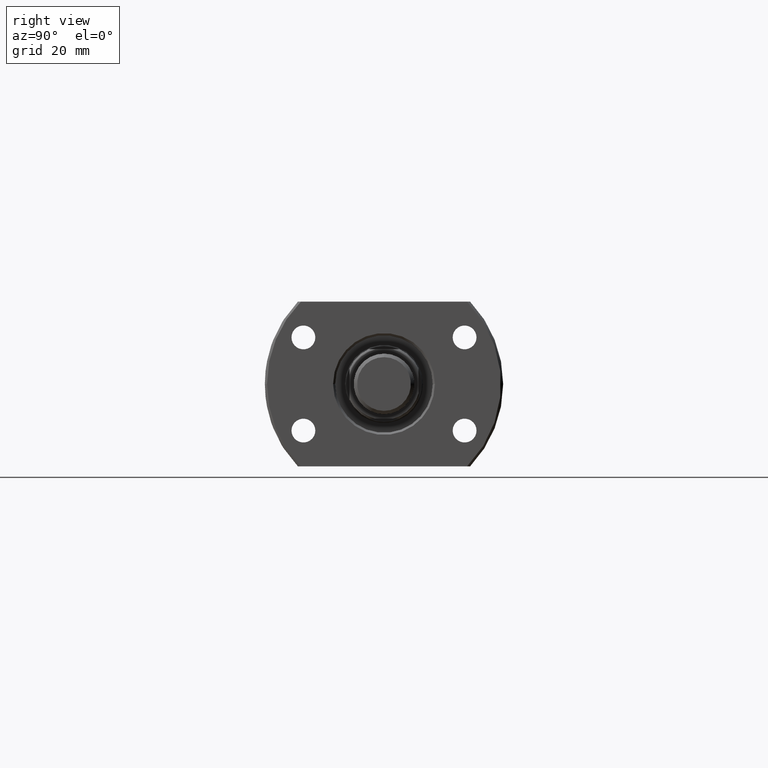
[diagram: clean part render]
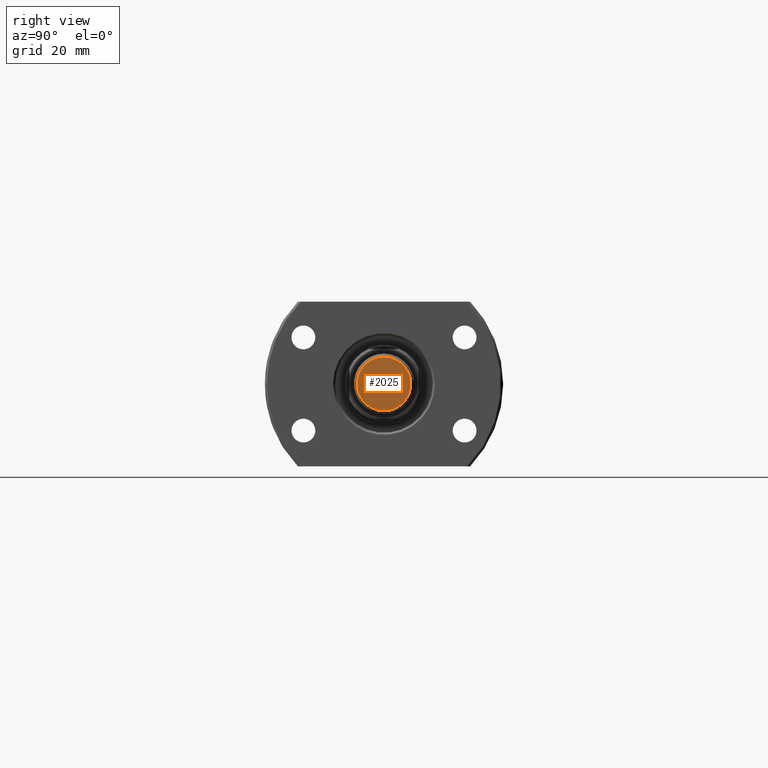
[diagram: same view with one face highlighted and labeled with its STEP entity id]
A machine part, right view. The second image highlights one B-rep face of the part: STEP entity #2025.
In plain terms, the highlighted planar face has unit normal (-1, -0, 0).
Its self-contained STEP definition (entity closure, byte-faithful):
#96 = AXIS2_PLACEMENT_3D ( 'NONE', #3229, #606, #1790 ) ;
#266 = DIRECTION ( 'NONE',  ( 1.000000000000000000, 0.000000000000000000, -0.000000000000000000 ) ) ;
#272 = CIRCLE ( 'NONE', #96, 6.199999999999999289 ) ;
#298 = EDGE_LOOP ( 'NONE', ( #1206, #431 ) ) ;
#361 = CARTESIAN_POINT ( 'NONE',  ( 0.000000000000000000, 0.000000000000000000, 0.000000000000000000 ) ) ;
#401 = DIRECTION ( 'NONE',  ( 1.000000000000000000, 0.000000000000000000, 0.000000000000000000 ) ) ;
#431 = ORIENTED_EDGE ( 'NONE', *, *, #2667, .T. ) ;
#532 = FACE_OUTER_BOUND ( 'NONE', #298, .T. ) ;
#568 = AXIS2_PLACEMENT_3D ( 'NONE', #361, #1535, #401 ) ;
#606 = DIRECTION ( 'NONE',  ( -0.000000000000000000, -0.000000000000000000, -1.000000000000000000 ) ) ;
#786 = CARTESIAN_POINT ( 'NONE',  ( 0.000000000000000000, 0.000000000000000000, 0.000000000000000000 ) ) ;
#1206 = ORIENTED_EDGE ( 'NONE', *, *, #2394, .T. ) ;
#1258 = VERTEX_POINT ( 'NONE', #3469 ) ;
#1535 = DIRECTION ( 'NONE',  ( -0.000000000000000000, -0.000000000000000000, -1.000000000000000000 ) ) ;
#1790 = DIRECTION ( 'NONE',  ( 1.000000000000000000, 0.000000000000000000, 0.000000000000000000 ) ) ;
#1926 = DIRECTION ( 'NONE',  ( 0.000000000000000000, 0.000000000000000000, 1.000000000000000000 ) ) ;
#2025 = ADVANCED_FACE ( 'NONE', ( #532 ), #3388, .F. ) ;
#2394 = EDGE_CURVE ( 'NONE', #2678, #1258, #272, .T. ) ;
#2407 = CIRCLE ( 'NONE', #568, 6.199999999999999289 ) ;
#2635 = CARTESIAN_POINT ( 'NONE',  ( 6.199999999999999289, 0.000000000000000000, 0.000000000000000000 ) ) ;
#2667 = EDGE_CURVE ( 'NONE', #1258, #2678, #2407, .T. ) ;
#2678 = VERTEX_POINT ( 'NONE', #2635 ) ;
#3072 = AXIS2_PLACEMENT_3D ( 'NONE', #786, #1926, #266 ) ;
#3229 = CARTESIAN_POINT ( 'NONE',  ( 0.000000000000000000, 0.000000000000000000, 0.000000000000000000 ) ) ;
#3388 = PLANE ( 'NONE',  #3072 ) ;
#3469 = CARTESIAN_POINT ( 'NONE',  ( -6.199999999999999289, 8.082668874372528061E-16, 0.000000000000000000 ) ) ;